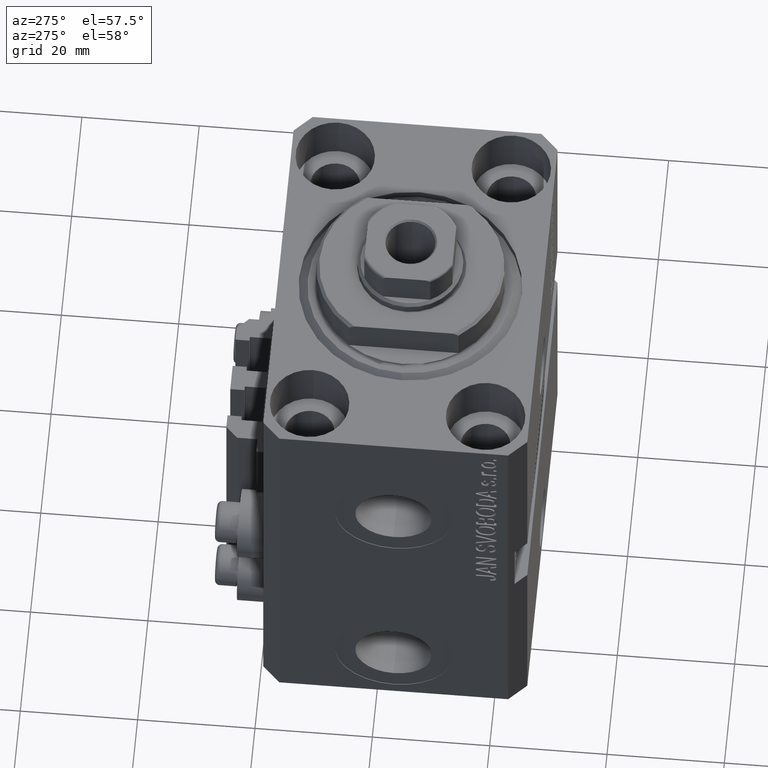
[diagram: clean part render]
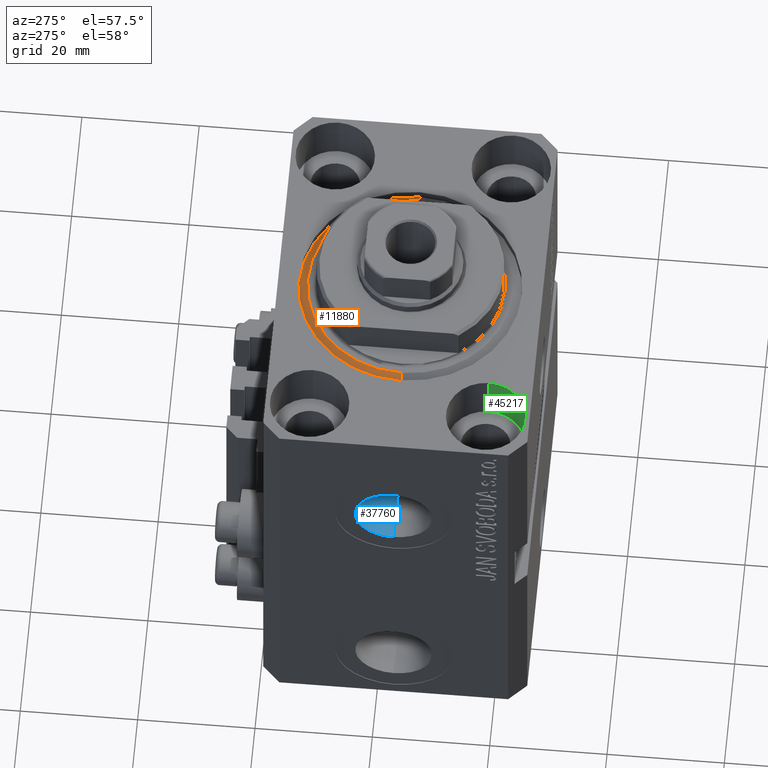
[diagram: same view with three faces highlighted in distinct colors, each labeled with its STEP entity id]
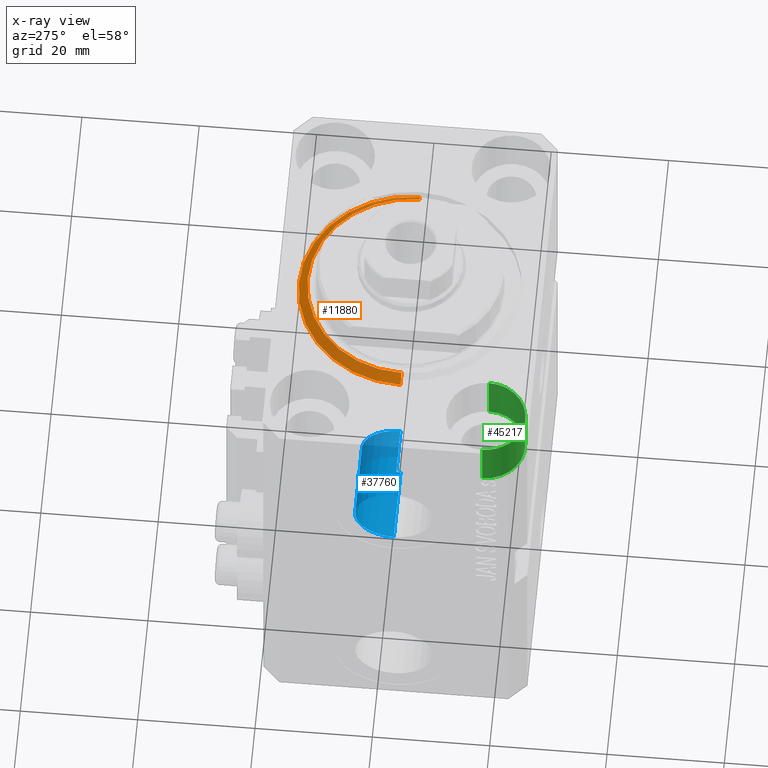
[diagram: x-ray of the same camera — body ghosted, the three highlighted faces saturated]
A machine part, auxiliary view with three faces highlighted in distinct colors.
The next image is the same camera in x-ray (body ghosted, the three faces saturated) — at least one of them is partly hidden behind the body in this view.
Their STEP definitions:

[orange] entity #11880 — the highlighted conical surface has half-angle 45 deg.
#184 = EDGE_CURVE ( 'NONE', #30523, #585, #20956, .T. ) ;
#585 = VERTEX_POINT ( 'NONE', #16901 ) ;
#777 = CARTESIAN_POINT ( 'NONE',  ( 19.00000000000000000, 2.326828918379970970E-15, 1.500000000000004885 ) ) ;
#3580 = CONICAL_SURFACE ( 'NONE', #17476, 19.00000000000000000, 0.7853981633974492782 ) ;
#4039 = CARTESIAN_POINT ( 'NONE',  ( 19.00000000000000000, 0.000000000000000000, 1.500000000000004885 ) ) ;
#6365 = ORIENTED_EDGE ( 'NONE', *, *, #43393, .T. ) ;
#7071 = CARTESIAN_POINT ( 'NONE',  ( -17.49999999999999289, 2.234980408443919215E-15, 0.000000000000000000 ) ) ;
#8669 = ORIENTED_EDGE ( 'NONE', *, *, #38148, .F. ) ;
#8680 = AXIS2_PLACEMENT_3D ( 'NONE', #21603, #29548, #43559 ) ;
#11880 = ADVANCED_FACE ( 'NONE', ( #45293 ), #3580, .T. ) ;
#12195 = EDGE_LOOP ( 'NONE', ( #21707, #6365, #38097, #8669 ) ) ;
#14093 = CARTESIAN_POINT ( 'NONE',  ( -19.00000000000000000, 2.326828918379970970E-15, 1.500000000000004885 ) ) ;
#16901 = CARTESIAN_POINT ( 'NONE',  ( 17.49999999999999289, 0.000000000000000000, 0.000000000000000000 ) ) ;
#17476 = AXIS2_PLACEMENT_3D ( 'NONE', #23337, #40187, #36563 ) ;
#20956 = CIRCLE ( 'NONE', #38678, 17.49999999999999289 ) ;
#21603 = CARTESIAN_POINT ( 'NONE',  ( 0.000000000000000000, 0.000000000000000000, 1.500000000000004885 ) ) ;
#21707 = ORIENTED_EDGE ( 'NONE', *, *, #184, .F. ) ;
#22375 = LINE ( 'NONE', #4039, #35330 ) ;
#23337 = CARTESIAN_POINT ( 'NONE',  ( 0.000000000000000000, 0.000000000000000000, 1.500000000000004885 ) ) ;
#28367 = DIRECTION ( 'NONE',  ( -0.000000000000000000, -0.000000000000000000, -1.000000000000000000 ) ) ;
#29548 = DIRECTION ( 'NONE',  ( -0.000000000000000000, -0.000000000000000000, 1.000000000000000000 ) ) ;
#29830 = DIRECTION ( 'NONE',  ( 0.7071067811865483499, 0.000000000000000000, 0.7071067811865467956 ) ) ;
#30523 = VERTEX_POINT ( 'NONE', #7071 ) ;
#32066 = EDGE_CURVE ( 'NONE', #33313, #46586, #41802, .T. ) ;
#33313 = VERTEX_POINT ( 'NONE', #777 ) ;
#35330 = VECTOR ( 'NONE', #29830, 1000.000000000000000 ) ;
#36563 = DIRECTION ( 'NONE',  ( 1.000000000000000000, 0.000000000000000000, 0.000000000000000000 ) ) ;
#38078 = CARTESIAN_POINT ( 'NONE',  ( -19.00000000000000000, 0.000000000000000000, 1.500000000000004885 ) ) ;
#38097 = ORIENTED_EDGE ( 'NONE', *, *, #32066, .F. ) ;
#38148 = EDGE_CURVE ( 'NONE', #585, #33313, #22375, .T. ) ;
#38678 = AXIS2_PLACEMENT_3D ( 'NONE', #46229, #28367, #46717 ) ;
#39374 = VECTOR ( 'NONE', #43538, 1000.000000000000000 ) ;
#40187 = DIRECTION ( 'NONE',  ( -0.000000000000000000, -0.000000000000000000, 1.000000000000000000 ) ) ;
#41802 = CIRCLE ( 'NONE', #8680, 19.00000000000000000 ) ;
#43393 = EDGE_CURVE ( 'NONE', #30523, #46586, #46687, .T. ) ;
#43538 = DIRECTION ( 'NONE',  ( -0.7071067811865483499, 8.659560562354943952E-17, 0.7071067811865467956 ) ) ;
#43559 = DIRECTION ( 'NONE',  ( 1.000000000000000000, 0.000000000000000000, 0.000000000000000000 ) ) ;
#45293 = FACE_OUTER_BOUND ( 'NONE', #12195, .T. ) ;
#46229 = CARTESIAN_POINT ( 'NONE',  ( 0.000000000000000000, 0.000000000000000000, 0.000000000000000000 ) ) ;
#46586 = VERTEX_POINT ( 'NONE', #38078 ) ;
#46687 = LINE ( 'NONE', #14093, #39374 ) ;
#46717 = DIRECTION ( 'NONE',  ( 1.000000000000000000, 0.000000000000000000, 0.000000000000000000 ) ) ;

[blue] entity #37760 — the highlighted cylindrical surface (partial cylindrical patch) has radius 6.58 mm, axis along (-1, -0, -0).
#1198 = CARTESIAN_POINT ( 'NONE',  ( -32.39999999999650271, 0.000000000000000000, -22.00000000000000000 ) ) ;
#3743 = LINE ( 'NONE', #7367, #36883 ) ;
#6753 = DIRECTION ( 'NONE',  ( 0.000000000000000000, 0.000000000000000000, 1.000000000000000000 ) ) ;
#7367 = CARTESIAN_POINT ( 'NONE',  ( -19.39999999999650271, 8.058175938389580558E-16, -28.57999999999999829 ) ) ;
#7576 = AXIS2_PLACEMENT_3D ( 'NONE', #39812, #17848, #6753 ) ;
#10384 = ORIENTED_EDGE ( 'NONE', *, *, #28920, .T. ) ;
#11738 = CIRCLE ( 'NONE', #38713, 6.579999999999999183 ) ;
#11773 = ORIENTED_EDGE ( 'NONE', *, *, #15693, .F. ) ;
#15693 = EDGE_CURVE ( 'NONE', #20653, #17652, #45331, .T. ) ;
#17652 = VERTEX_POINT ( 'NONE', #23194 ) ;
#17848 = DIRECTION ( 'NONE',  ( -1.000000000000000000, -0.000000000000000000, -0.000000000000000000 ) ) ;
#18968 = DIRECTION ( 'NONE',  ( 0.000000000000000000, 0.000000000000000000, 1.000000000000000000 ) ) ;
#19807 = CARTESIAN_POINT ( 'NONE',  ( -32.39999999999650271, 0.000000000000000000, -15.41999999999999993 ) ) ;
#20653 = VERTEX_POINT ( 'NONE', #27277 ) ;
#22675 = LINE ( 'NONE', #26527, #22971 ) ;
#22683 = DIRECTION ( 'NONE',  ( 0.000000000000000000, 0.000000000000000000, 1.000000000000000000 ) ) ;
#22971 = VECTOR ( 'NONE', #37393, 1000.000000000000000 ) ;
#23194 = CARTESIAN_POINT ( 'NONE',  ( -19.39999999999650271, 8.058175938389579572E-16, -28.57999999999999829 ) ) ;
#23199 = ORIENTED_EDGE ( 'NONE', *, *, #39278, .F. ) ;
#26527 = CARTESIAN_POINT ( 'NONE',  ( -19.39999999999650271, 0.000000000000000000, -15.41999999999999993 ) ) ;
#27277 = CARTESIAN_POINT ( 'NONE',  ( -19.39999999999650271, 0.000000000000000000, -15.41999999999999993 ) ) ;
#28718 = FACE_OUTER_BOUND ( 'NONE', #41236, .T. ) ;
#28849 = DIRECTION ( 'NONE',  ( -1.000000000000000000, -0.000000000000000000, -0.000000000000000000 ) ) ;
#28920 = EDGE_CURVE ( 'NONE', #36893, #30590, #11738, .T. ) ;
#29033 = CARTESIAN_POINT ( 'NONE',  ( -32.39999999999650271, 8.058175938389579572E-16, -28.57999999999999829 ) ) ;
#30590 = VERTEX_POINT ( 'NONE', #29033 ) ;
#32222 = AXIS2_PLACEMENT_3D ( 'NONE', #37068, #44544, #18968 ) ;
#36197 = ORIENTED_EDGE ( 'NONE', *, *, #36630, .T. ) ;
#36630 = EDGE_CURVE ( 'NONE', #20653, #36893, #22675, .T. ) ;
#36883 = VECTOR ( 'NONE', #28849, 1000.000000000000000 ) ;
#36893 = VERTEX_POINT ( 'NONE', #19807 ) ;
#36912 = DIRECTION ( 'NONE',  ( -1.000000000000000000, 0.000000000000000000, 0.000000000000000000 ) ) ;
#37068 = CARTESIAN_POINT ( 'NONE',  ( -19.39999999999650271, 0.000000000000000000, -22.00000000000000000 ) ) ;
#37393 = DIRECTION ( 'NONE',  ( -1.000000000000000000, -0.000000000000000000, -0.000000000000000000 ) ) ;
#37760 = ADVANCED_FACE ( 'NONE', ( #28718 ), #46340, .F. ) ;
#38713 = AXIS2_PLACEMENT_3D ( 'NONE', #1198, #36912, #22683 ) ;
#39278 = EDGE_CURVE ( 'NONE', #17652, #30590, #3743, .T. ) ;
#39812 = CARTESIAN_POINT ( 'NONE',  ( -19.39999999999650271, 0.000000000000000000, -22.00000000000000000 ) ) ;
#41236 = EDGE_LOOP ( 'NONE', ( #23199, #11773, #36197, #10384 ) ) ;
#44544 = DIRECTION ( 'NONE',  ( -1.000000000000000000, 0.000000000000000000, 0.000000000000000000 ) ) ;
#45331 = CIRCLE ( 'NONE', #32222, 6.579999999999999183 ) ;
#46340 = CYLINDRICAL_SURFACE ( 'NONE', #7576, 6.579999999999999183 ) ;

[green] entity #45217 — the highlighted cylindrical surface (partial cylindrical patch) has radius 6.75 mm, axis along (0, 0, 1).
#2245 = CARTESIAN_POINT ( 'NONE',  ( -18.24999999995846167, -15.00000000000000000, 0.000000000000000000 ) ) ;
#4210 = VERTEX_POINT ( 'NONE', #19462 ) ;
#4346 = CARTESIAN_POINT ( 'NONE',  ( -18.24999999995846167, -15.00000000000000000, -9.000000000000000000 ) ) ;
#4532 = EDGE_LOOP ( 'NONE', ( #20402, #23048, #45853, #12152 ) ) ;
#6513 = AXIS2_PLACEMENT_3D ( 'NONE', #43476, #10414, #36225 ) ;
#6544 = EDGE_CURVE ( 'NONE', #4210, #22360, #21161, .T. ) ;
#6719 = VECTOR ( 'NONE', #32583, 1000.000000000000000 ) ;
#6904 = DIRECTION ( 'NONE',  ( 0.000000000000000000, 0.000000000000000000, 1.000000000000000000 ) ) ;
#10414 = DIRECTION ( 'NONE',  ( 0.000000000000000000, 0.000000000000000000, 1.000000000000000000 ) ) ;
#10757 = CARTESIAN_POINT ( 'NONE',  ( -25.00000000000000355, -15.00000000000000000, 0.000000000000000000 ) ) ;
#11708 = VECTOR ( 'NONE', #39129, 1000.000000000000000 ) ;
#12152 = ORIENTED_EDGE ( 'NONE', *, *, #12581, .F. ) ;
#12581 = EDGE_CURVE ( 'NONE', #22360, #21765, #47315, .T. ) ;
#14199 = DIRECTION ( 'NONE',  ( -0.000000000000000000, -0.000000000000000000, 1.000000000000000000 ) ) ;
#17362 = DIRECTION ( 'NONE',  ( 1.000000000000000000, 0.000000000000000000, 0.000000000000000000 ) ) ;
#18000 = DIRECTION ( 'NONE',  ( 1.000000000000000000, 0.000000000000000000, 0.000000000000000000 ) ) ;
#18721 = VERTEX_POINT ( 'NONE', #28727 ) ;
#19462 = CARTESIAN_POINT ( 'NONE',  ( -31.75000000004154899, -15.00000000000000000, -9.000000000000000000 ) ) ;
#20402 = ORIENTED_EDGE ( 'NONE', *, *, #6544, .F. ) ;
#21161 = CIRCLE ( 'NONE', #6513, 6.750000000041541881 ) ;
#21217 = FACE_OUTER_BOUND ( 'NONE', #4532, .T. ) ;
#21765 = VERTEX_POINT ( 'NONE', #2245 ) ;
#21923 = CARTESIAN_POINT ( 'NONE',  ( -25.00000000000000355, -15.00000000000000000, -9.000000000000000000 ) ) ;
#22360 = VERTEX_POINT ( 'NONE', #23549 ) ;
#23048 = ORIENTED_EDGE ( 'NONE', *, *, #46360, .T. ) ;
#23549 = CARTESIAN_POINT ( 'NONE',  ( -18.24999999995846167, -15.00000000000000000, -9.000000000000000000 ) ) ;
#24045 = CIRCLE ( 'NONE', #27902, 6.750000000041541881 ) ;
#24413 = LINE ( 'NONE', #44124, #11708 ) ;
#27902 = AXIS2_PLACEMENT_3D ( 'NONE', #10757, #6904, #18000 ) ;
#28727 = CARTESIAN_POINT ( 'NONE',  ( -31.75000000004154899, -15.00000000000000000, 0.000000000000000000 ) ) ;
#32583 = DIRECTION ( 'NONE',  ( -0.000000000000000000, -0.000000000000000000, 1.000000000000000000 ) ) ;
#36225 = DIRECTION ( 'NONE',  ( 1.000000000000000000, 0.000000000000000000, 0.000000000000000000 ) ) ;
#37891 = AXIS2_PLACEMENT_3D ( 'NONE', #21923, #14199, #17362 ) ;
#39129 = DIRECTION ( 'NONE',  ( -0.000000000000000000, -0.000000000000000000, 1.000000000000000000 ) ) ;
#43476 = CARTESIAN_POINT ( 'NONE',  ( -25.00000000000000355, -15.00000000000000000, -9.000000000000000000 ) ) ;
#44124 = CARTESIAN_POINT ( 'NONE',  ( -31.75000000004154899, -15.00000000000000000, -9.000000000000000000 ) ) ;
#45217 = ADVANCED_FACE ( 'NONE', ( #21217 ), #47024, .F. ) ;
#45648 = EDGE_CURVE ( 'NONE', #18721, #21765, #24045, .T. ) ;
#45853 = ORIENTED_EDGE ( 'NONE', *, *, #45648, .T. ) ;
#46360 = EDGE_CURVE ( 'NONE', #4210, #18721, #24413, .T. ) ;
#47024 = CYLINDRICAL_SURFACE ( 'NONE', #37891, 6.750000000041541881 ) ;
#47315 = LINE ( 'NONE', #4346, #6719 ) ;